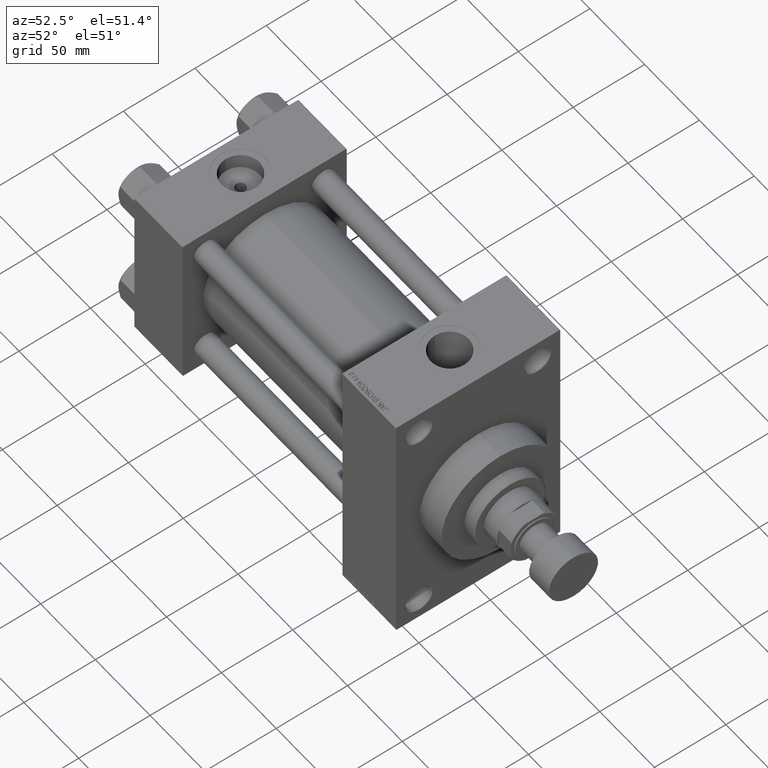
[diagram: clean part render]
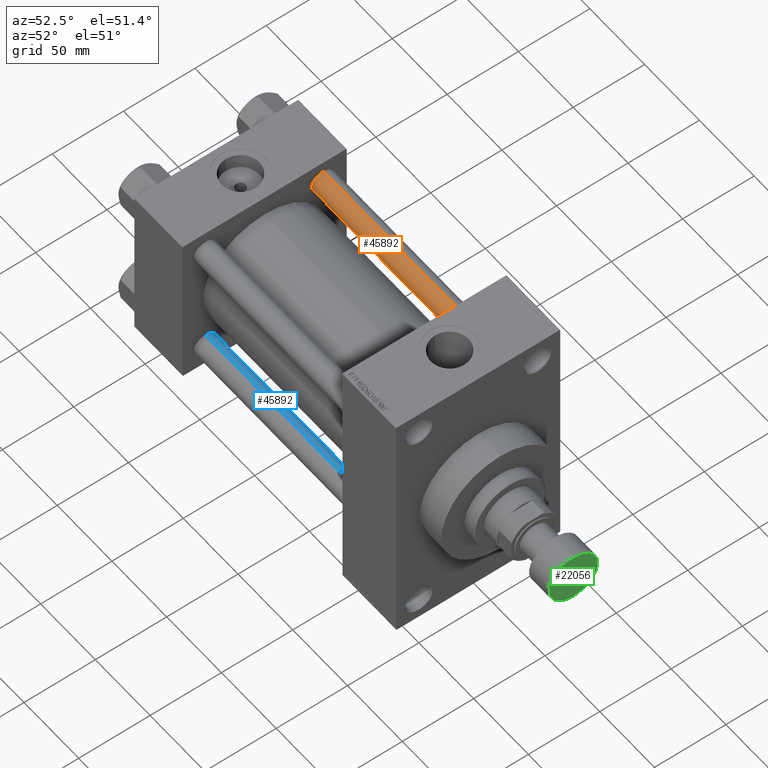
[diagram: same view with three faces highlighted in distinct colors, each labeled with its STEP entity id]
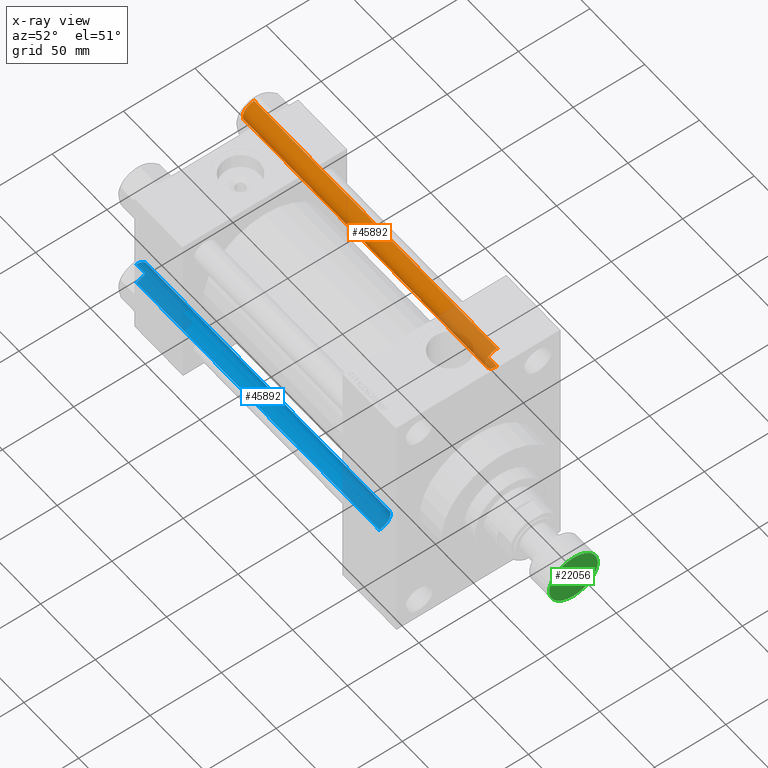
[diagram: x-ray of the same camera — body ghosted, the three highlighted faces saturated]
A machine part, auxiliary view with three faces highlighted in distinct colors.
The next image is the same camera in x-ray (body ghosted, the three faces saturated) — at least one of them is partly hidden behind the body in this view.
Their STEP definitions:

[orange] entity #45892 — the highlighted cylindrical surface (edge-blend (fillet) strip) has radius 8 mm, axis along (1, -0, -0).
#463 = EDGE_CURVE ( 'NONE', #19813, #27136, #4691, .T. ) ;
#2063 = ORIENTED_EDGE ( 'NONE', *, *, #39904, .T. ) ;
#3342 = DIRECTION ( 'NONE',  ( 1.000000000000000000, 0.000000000000000000, 0.000000000000000000 ) ) ;
#4691 = CIRCLE ( 'NONE', #24936, 8.000000000000000000 ) ;
#5208 = VECTOR ( 'NONE', #26583, 1000.000000000000000 ) ;
#8400 = CARTESIAN_POINT ( 'NONE',  ( -8.000000000000000000, 0.000000000000000000, 223.0000000000000000 ) ) ;
#11074 = VERTEX_POINT ( 'NONE', #36805 ) ;
#12233 = CARTESIAN_POINT ( 'NONE',  ( 0.000000000000000000, 0.000000000000000000, 223.0000000000000000 ) ) ;
#12832 = CARTESIAN_POINT ( 'NONE',  ( 8.000000000000000000, 9.797174393178823685E-16, 222.5000000000001137 ) ) ;
#13421 = ORIENTED_EDGE ( 'NONE', *, *, #32434, .F. ) ;
#14515 = DIRECTION ( 'NONE',  ( -0.000000000000000000, -0.000000000000000000, -1.000000000000000000 ) ) ;
#15657 = FACE_OUTER_BOUND ( 'NONE', #19591, .T. ) ;
#16026 = CIRCLE ( 'NONE', #23026, 8.000000000000000000 ) ;
#16223 = VECTOR ( 'NONE', #35147, 1000.000000000000000 ) ;
#16530 = CARTESIAN_POINT ( 'NONE',  ( 8.000000000000000000, 9.797174393178823685E-16, 0.5000000000001669775 ) ) ;
#19028 = LINE ( 'NONE', #30471, #5208 ) ;
#19591 = EDGE_LOOP ( 'NONE', ( #13421, #43929, #2063, #37150 ) ) ;
#19813 = VERTEX_POINT ( 'NONE', #12832 ) ;
#21717 = AXIS2_PLACEMENT_3D ( 'NONE', #12233, #14515, #29388 ) ;
#23026 = AXIS2_PLACEMENT_3D ( 'NONE', #47157, #47635, #3342 ) ;
#24936 = AXIS2_PLACEMENT_3D ( 'NONE', #30003, #26348, #26587 ) ;
#26348 = DIRECTION ( 'NONE',  ( 0.000000000000000000, 0.000000000000000000, -1.000000000000000000 ) ) ;
#26559 = VERTEX_POINT ( 'NONE', #16530 ) ;
#26583 = DIRECTION ( 'NONE',  ( -0.000000000000000000, -0.000000000000000000, -1.000000000000000000 ) ) ;
#26587 = DIRECTION ( 'NONE',  ( 1.000000000000000000, 0.000000000000000000, 0.000000000000000000 ) ) ;
#27136 = VERTEX_POINT ( 'NONE', #28111 ) ;
#28111 = CARTESIAN_POINT ( 'NONE',  ( -8.000000000000000000, 0.000000000000000000, 222.5000000000001137 ) ) ;
#29388 = DIRECTION ( 'NONE',  ( -1.000000000000000000, 0.000000000000000000, 0.000000000000000000 ) ) ;
#29863 = EDGE_CURVE ( 'NONE', #11074, #26559, #16026, .T. ) ;
#30003 = CARTESIAN_POINT ( 'NONE',  ( 0.000000000000000000, 0.000000000000000000, 222.5000000000001137 ) ) ;
#30471 = CARTESIAN_POINT ( 'NONE',  ( 8.000000000000000000, 9.797174393178823685E-16, 223.0000000000000000 ) ) ;
#32434 = EDGE_CURVE ( 'NONE', #19813, #26559, #19028, .T. ) ;
#34435 = LINE ( 'NONE', #8400, #16223 ) ;
#35147 = DIRECTION ( 'NONE',  ( -0.000000000000000000, -0.000000000000000000, -1.000000000000000000 ) ) ;
#36805 = CARTESIAN_POINT ( 'NONE',  ( -8.000000000000000000, 0.000000000000000000, 0.5000000000001669775 ) ) ;
#37150 = ORIENTED_EDGE ( 'NONE', *, *, #29863, .T. ) ;
#39904 = EDGE_CURVE ( 'NONE', #27136, #11074, #34435, .T. ) ;
#43929 = ORIENTED_EDGE ( 'NONE', *, *, #463, .T. ) ;
#45892 = ADVANCED_FACE ( 'NONE', ( #15657 ), #48109, .T. ) ;
#47157 = CARTESIAN_POINT ( 'NONE',  ( 0.000000000000000000, 0.000000000000000000, 0.5000000000001669775 ) ) ;
#47635 = DIRECTION ( 'NONE',  ( -0.000000000000000000, -0.000000000000000000, 1.000000000000000000 ) ) ;
#48109 = CYLINDRICAL_SURFACE ( 'NONE', #21717, 8.000000000000000000 ) ;

[blue] entity #45892 — the highlighted cylindrical surface (edge-blend (fillet) strip) has radius 8 mm, axis along (1, 0, 0).
#463 = EDGE_CURVE ( 'NONE', #19813, #27136, #4691, .T. ) ;
#2063 = ORIENTED_EDGE ( 'NONE', *, *, #39904, .T. ) ;
#3342 = DIRECTION ( 'NONE',  ( 1.000000000000000000, 0.000000000000000000, 0.000000000000000000 ) ) ;
#4691 = CIRCLE ( 'NONE', #24936, 8.000000000000000000 ) ;
#5208 = VECTOR ( 'NONE', #26583, 1000.000000000000000 ) ;
#8400 = CARTESIAN_POINT ( 'NONE',  ( -8.000000000000000000, 0.000000000000000000, 223.0000000000000000 ) ) ;
#11074 = VERTEX_POINT ( 'NONE', #36805 ) ;
#12233 = CARTESIAN_POINT ( 'NONE',  ( 0.000000000000000000, 0.000000000000000000, 223.0000000000000000 ) ) ;
#12832 = CARTESIAN_POINT ( 'NONE',  ( 8.000000000000000000, 9.797174393178823685E-16, 222.5000000000001137 ) ) ;
#13421 = ORIENTED_EDGE ( 'NONE', *, *, #32434, .F. ) ;
#14515 = DIRECTION ( 'NONE',  ( -0.000000000000000000, -0.000000000000000000, -1.000000000000000000 ) ) ;
#15657 = FACE_OUTER_BOUND ( 'NONE', #19591, .T. ) ;
#16026 = CIRCLE ( 'NONE', #23026, 8.000000000000000000 ) ;
#16223 = VECTOR ( 'NONE', #35147, 1000.000000000000000 ) ;
#16530 = CARTESIAN_POINT ( 'NONE',  ( 8.000000000000000000, 9.797174393178823685E-16, 0.5000000000001669775 ) ) ;
#19028 = LINE ( 'NONE', #30471, #5208 ) ;
#19591 = EDGE_LOOP ( 'NONE', ( #13421, #43929, #2063, #37150 ) ) ;
#19813 = VERTEX_POINT ( 'NONE', #12832 ) ;
#21717 = AXIS2_PLACEMENT_3D ( 'NONE', #12233, #14515, #29388 ) ;
#23026 = AXIS2_PLACEMENT_3D ( 'NONE', #47157, #47635, #3342 ) ;
#24936 = AXIS2_PLACEMENT_3D ( 'NONE', #30003, #26348, #26587 ) ;
#26348 = DIRECTION ( 'NONE',  ( 0.000000000000000000, 0.000000000000000000, -1.000000000000000000 ) ) ;
#26559 = VERTEX_POINT ( 'NONE', #16530 ) ;
#26583 = DIRECTION ( 'NONE',  ( -0.000000000000000000, -0.000000000000000000, -1.000000000000000000 ) ) ;
#26587 = DIRECTION ( 'NONE',  ( 1.000000000000000000, 0.000000000000000000, 0.000000000000000000 ) ) ;
#27136 = VERTEX_POINT ( 'NONE', #28111 ) ;
#28111 = CARTESIAN_POINT ( 'NONE',  ( -8.000000000000000000, 0.000000000000000000, 222.5000000000001137 ) ) ;
#29388 = DIRECTION ( 'NONE',  ( -1.000000000000000000, 0.000000000000000000, 0.000000000000000000 ) ) ;
#29863 = EDGE_CURVE ( 'NONE', #11074, #26559, #16026, .T. ) ;
#30003 = CARTESIAN_POINT ( 'NONE',  ( 0.000000000000000000, 0.000000000000000000, 222.5000000000001137 ) ) ;
#30471 = CARTESIAN_POINT ( 'NONE',  ( 8.000000000000000000, 9.797174393178823685E-16, 223.0000000000000000 ) ) ;
#32434 = EDGE_CURVE ( 'NONE', #19813, #26559, #19028, .T. ) ;
#34435 = LINE ( 'NONE', #8400, #16223 ) ;
#35147 = DIRECTION ( 'NONE',  ( -0.000000000000000000, -0.000000000000000000, -1.000000000000000000 ) ) ;
#36805 = CARTESIAN_POINT ( 'NONE',  ( -8.000000000000000000, 0.000000000000000000, 0.5000000000001669775 ) ) ;
#37150 = ORIENTED_EDGE ( 'NONE', *, *, #29863, .T. ) ;
#39904 = EDGE_CURVE ( 'NONE', #27136, #11074, #34435, .T. ) ;
#43929 = ORIENTED_EDGE ( 'NONE', *, *, #463, .T. ) ;
#45892 = ADVANCED_FACE ( 'NONE', ( #15657 ), #48109, .T. ) ;
#47157 = CARTESIAN_POINT ( 'NONE',  ( 0.000000000000000000, 0.000000000000000000, 0.5000000000001669775 ) ) ;
#47635 = DIRECTION ( 'NONE',  ( -0.000000000000000000, -0.000000000000000000, 1.000000000000000000 ) ) ;
#48109 = CYLINDRICAL_SURFACE ( 'NONE', #21717, 8.000000000000000000 ) ;

[green] entity #22056 — the highlighted planar face has unit normal (1, 0, 0).
#2669 = CARTESIAN_POINT ( 'NONE',  ( -17.00000000000000355, 2.112515728529184856E-15, 0.000000000000000000 ) ) ;
#2878 = CARTESIAN_POINT ( 'NONE',  ( 0.000000000000000000, 0.000000000000000000, 0.000000000000000000 ) ) ;
#3254 = VERTEX_POINT ( 'NONE', #36871 ) ;
#4981 = AXIS2_PLACEMENT_3D ( 'NONE', #8018, #40630, #15068 ) ;
#5407 = AXIS2_PLACEMENT_3D ( 'NONE', #2878, #20887, #46934 ) ;
#6189 = CIRCLE ( 'NONE', #5407, 17.00000000000000355 ) ;
#8018 = CARTESIAN_POINT ( 'NONE',  ( 0.000000000000000000, 0.000000000000000000, 0.000000000000000000 ) ) ;
#8622 = PLANE ( 'NONE',  #46218 ) ;
#15068 = DIRECTION ( 'NONE',  ( 1.000000000000000000, 0.000000000000000000, 0.000000000000000000 ) ) ;
#20563 = EDGE_CURVE ( 'NONE', #30657, #3254, #39977, .T. ) ;
#20887 = DIRECTION ( 'NONE',  ( 0.000000000000000000, 0.000000000000000000, 1.000000000000000000 ) ) ;
#22056 = ADVANCED_FACE ( 'NONE', ( #45375 ), #8622, .T. ) ;
#30162 = EDGE_LOOP ( 'NONE', ( #38361, #40671 ) ) ;
#30657 = VERTEX_POINT ( 'NONE', #2669 ) ;
#36871 = CARTESIAN_POINT ( 'NONE',  ( 17.00000000000000355, 0.000000000000000000, 0.000000000000000000 ) ) ;
#38062 = DIRECTION ( 'NONE',  ( 1.000000000000000000, 0.000000000000000000, -0.000000000000000000 ) ) ;
#38361 = ORIENTED_EDGE ( 'NONE', *, *, #42304, .T. ) ;
#39977 = CIRCLE ( 'NONE', #4981, 17.00000000000000355 ) ;
#40630 = DIRECTION ( 'NONE',  ( 0.000000000000000000, 0.000000000000000000, 1.000000000000000000 ) ) ;
#40671 = ORIENTED_EDGE ( 'NONE', *, *, #20563, .T. ) ;
#42182 = CARTESIAN_POINT ( 'NONE',  ( 0.000000000000000000, 0.000000000000000000, 0.000000000000000000 ) ) ;
#42304 = EDGE_CURVE ( 'NONE', #3254, #30657, #6189, .T. ) ;
#45375 = FACE_OUTER_BOUND ( 'NONE', #30162, .T. ) ;
#45840 = DIRECTION ( 'NONE',  ( 0.000000000000000000, 0.000000000000000000, 1.000000000000000000 ) ) ;
#46218 = AXIS2_PLACEMENT_3D ( 'NONE', #42182, #45840, #38062 ) ;
#46934 = DIRECTION ( 'NONE',  ( 1.000000000000000000, 0.000000000000000000, 0.000000000000000000 ) ) ;